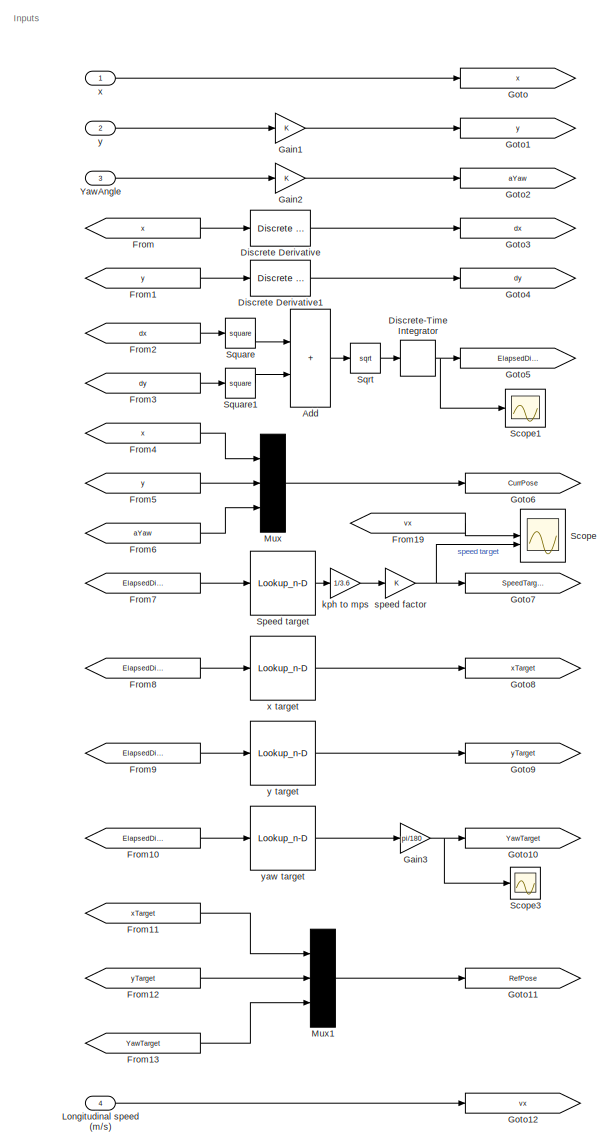
[diagram: root canvas - part 1/2, left side, full height]
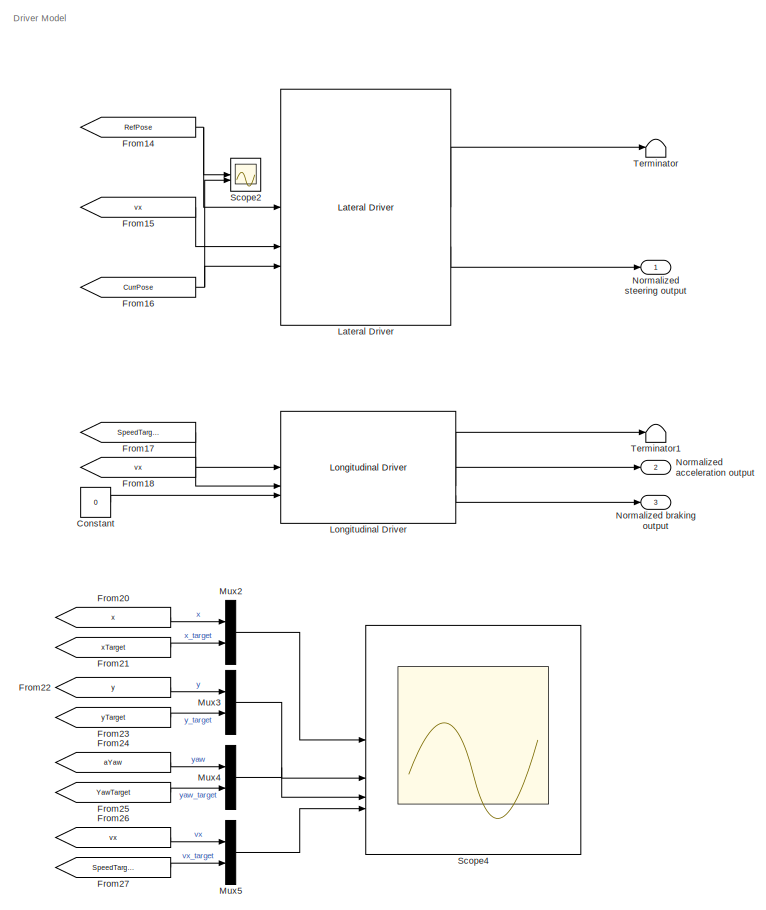
[diagram: root canvas - part 2/2, right side, full height]
MODEL slx_6027db2ee153
KIND model
CONFIG AbsTol = auto
CONFIG EnableMultiTasking = off
CONFIG FixedStep = Ts
CONFIG MaxStep = auto
CONFIG MinStep = auto
CONFIG RelTol = 1e-3
CONFIG SampleTimeConstraint = Unconstrained
CONFIG SolverName = FixedStepAuto
CONFIG StartTime = 0.0
CONFIG StopTime = 10.0
BLOCK [Sum] Add
  IconShape = rectangular
BLOCK [Constant] Constant
  Value = 0
BLOCK [Reference] Discrete Derivative  REF=simulink/Discrete/Discrete Derivative
  SourceBlock = simulink/Discrete/Discrete Derivative
  SourceType = Discrete Derivative
BLOCK [Reference] Discrete Derivative1  REF=simulink/Discrete/Discrete Derivative
  SourceBlock = simulink/Discrete/Discrete Derivative
  SourceType = Discrete Derivative
BLOCK [DiscreteIntegrator] Discrete-Time Integrator
  ICPrevOutput = DiscIntNeverNeededParam
  ICPrevScaledInput = DiscIntNeverNeededParam
  InitialConditionSetting = Auto
  SampleTime = -1
BLOCK [From] From
  GotoTag = x
BLOCK [From] From1
  GotoTag = y
BLOCK [From] From10
  GotoTag = ElapsedDistance
BLOCK [From] From11
  GotoTag = xTarget
BLOCK [From] From12
  GotoTag = yTarget
BLOCK [From] From13
  GotoTag = YawTarget
BLOCK [From] From14
  GotoTag = RefPose
BLOCK [From] From15
  GotoTag = vx
BLOCK [From] From16
  GotoTag = CurrPose
BLOCK [From] From17
  GotoTag = SpeedTarget
BLOCK [From] From18
  GotoTag = vx
BLOCK [From] From19
  GotoTag = vx
BLOCK [From] From2
  GotoTag = dx
BLOCK [From] From20
  GotoTag = x
BLOCK [From] From21
  GotoTag = xTarget
BLOCK [From] From22
  GotoTag = y
BLOCK [From] From23
  GotoTag = yTarget
BLOCK [From] From24
  GotoTag = aYaw
BLOCK [From] From25
  GotoTag = YawTarget
BLOCK [From] From26
  GotoTag = vx
BLOCK [From] From27
  GotoTag = SpeedTarget
BLOCK [From] From3
  GotoTag = dy
BLOCK [From] From4
  GotoTag = x
BLOCK [From] From5
  GotoTag = y
BLOCK [From] From6
  GotoTag = aYaw
BLOCK [From] From7
  GotoTag = ElapsedDistance
BLOCK [From] From8
  GotoTag = ElapsedDistance
BLOCK [From] From9
  GotoTag = ElapsedDistance
BLOCK [Gain] Gain1
BLOCK [Gain] Gain2
BLOCK [Gain] Gain3
  Gain = pi/180
BLOCK [Goto] Goto
  GotoTag = x
BLOCK [Goto] Goto1
  GotoTag = y
BLOCK [Goto] Goto10
  GotoTag = YawTarget
BLOCK [Goto] Goto11
  GotoTag = RefPose
BLOCK [Goto] Goto12
  GotoTag = vx
BLOCK [Goto] Goto2
  GotoTag = aYaw
BLOCK [Goto] Goto3
  GotoTag = dx
BLOCK [Goto] Goto4
  GotoTag = dy
BLOCK [Goto] Goto5
  GotoTag = ElapsedDistance
BLOCK [Goto] Goto6
  GotoTag = CurrPose
BLOCK [Goto] Goto7
  GotoTag = SpeedTarget
BLOCK [Goto] Goto8
  GotoTag = xTarget
BLOCK [Goto] Goto9
  GotoTag = yTarget
BLOCK [Reference] Lateral Driver  REF=vehdynlibdriver/Lateral Driver
  SourceBlock = vehdynlibdriver/Lateral Driver
  SourceType = Lateral Driver
BLOCK [Reference] Longitudinal Driver  REF=autolibshared/Longitudinal Driver
  LibrarySourceBlock = vehdynlibdriver/Longitudinal Driver
  SourceBlock = autolibshared/Longitudinal Driver
  SourceType = Longitudinal Driver
BLOCK [Inport] Longitudinal speed (m//s)
  Port = 4
BLOCK [Mux] Mux
  DisplayOption = bar
  Inputs = 3
BLOCK [Mux] Mux1
  DisplayOption = bar
  Inputs = 3
BLOCK [Mux] Mux2
  DisplayOption = bar
  Inputs = 2
BLOCK [Mux] Mux3
  DisplayOption = bar
  Inputs = 2
BLOCK [Mux] Mux4
  DisplayOption = bar
  Inputs = 2
BLOCK [Mux] Mux5
  DisplayOption = bar
  Inputs = 2
BLOCK [Outport] Normalized acceleration output
  Port = 2
BLOCK [Outport] Normalized braking output
  Port = 3
BLOCK [Outport] Normalized steering output
BLOCK [Scope] Scope
  Floating = off
  NumInputPorts = 2
  ScopeSpecificationString = Simulink.scopes.TimeScopeBlockCfg('CurrentConfiguration', extmgr.ConfigurationSet(extmgr.Configuration('Core','General UI',true),extmgr.Configuration('Core','Source UI',true),extmgr.Configuration('Sources','WiredSimulink',true),extmgr.Configuration('Visuals','Time Domain',true,'SerializedDisplays',{struct('MinYLimReal','-1.9335','MaxYLimReal','22.32298','YLabelReal','','MinYLimMag','0.00000','MaxY...<+1477ch>
BLOCK [Scope] Scope1
  Floating = off
  NumInputPorts = 1
  ScopeSpecificationString = Simulink.scopes.TimeScopeBlockCfg('CurrentConfiguration', extmgr.ConfigurationSet(extmgr.Configuration('Core','General UI',true),extmgr.Configuration('Core','Source UI',true),extmgr.Configuration('Sources','WiredSimulink',true,'DataLoggingVariableName','ScopeData1'),extmgr.Configuration('Visuals','Time Domain',true,'SerializedDisplays',{struct('MinYLimReal','-25.48926','MaxYLimReal','229.40334','Y...<+1511ch>
BLOCK [Scope] Scope2
  Floating = off
  NumInputPorts = 2
  ScopeSpecificationString = Simulink.scopes.TimeScopeBlockCfg('CurrentConfiguration', extmgr.ConfigurationSet(extmgr.Configuration('Core','General UI',true),extmgr.Configuration('Core','Source UI',true),extmgr.Configuration('Sources','WiredSimulink',true,'DataLoggingVariableName','ScopeData2'),extmgr.Configuration('Visuals','Time Domain',true,'SerializedDisplays',{struct('MinYLimReal','-22.81124','MaxYLimReal','22.81174','YL...<+2225ch>
BLOCK [Scope] Scope3
  Floating = off
  NumInputPorts = 1
  ScopeSpecificationString = Simulink.scopes.TimeScopeBlockCfg('CurrentConfiguration', extmgr.ConfigurationSet(extmgr.Configuration('Core','General UI',true),extmgr.Configuration('Core','Source UI',true),extmgr.Configuration('Sources','WiredSimulink',true,'DataLoggingVariableName','ScopeData3'),extmgr.Configuration('Visuals','Time Domain',true,'SerializedDisplays',{struct('MinYLimReal','-13.62939','MaxYLimReal','122.66451','Y...<+1468ch>
BLOCK [Scope] Scope4
  Floating = off
  NumInputPorts = 4
  ScopeSpecificationString = Simulink.scopes.TimeScopeBlockCfg('CurrentConfiguration', extmgr.ConfigurationSet(extmgr.Configuration('Core','General UI',true),extmgr.Configuration('Core','Source UI',true),extmgr.Configuration('Sources','WiredSimulink',true,'DataLoggingVariableName','ScopeData1'),extmgr.Configuration('Visuals','Time Domain',true,'SerializedDisplays',{struct('MinYLimReal','-12.23159','MaxYLimReal','18.43298','YL...<+4176ch>
BLOCK [Lookup_n-D] Speed target
  BreakpointsForDimension1 = lapData.distance
  InputPortMap = u0
  InternalRulePriority = Speed
  NumberOfTableDimensions = 1
  RndMeth = Simplest
  Table = lapData.vitesse
BLOCK [Sqrt] Sqrt
BLOCK [Math] Square
  Operator = square
BLOCK [Math] Square1
  Operator = square
BLOCK [Terminator] Terminator
BLOCK [Terminator] Terminator1
BLOCK [Inport] YawAngle
  Port = 3
BLOCK [Gain] kph to mps
  Gain = 1/3.6
BLOCK [Gain] speed factor
BLOCK [Inport] x
BLOCK [Lookup_n-D] x target
  BreakpointsForDimension1 = lapData.distance
  InputPortMap = u0
  InternalRulePriority = Speed
  NumberOfTableDimensions = 1
  RndMeth = Simplest
  Table = lapData.x
BLOCK [Inport] y
  Port = 2
BLOCK [Lookup_n-D] y target
  BreakpointsForDimension1 = lapData.distance
  InputPortMap = u0
  InternalRulePriority = Speed
  NumberOfTableDimensions = 1
  RndMeth = Simplest
  Table = lapData.y
BLOCK [Lookup_n-D] yaw target
  BreakpointsForDimension1 = lapData.distance
  InputPortMap = u0
  InternalRulePriority = Speed
  NumberOfTableDimensions = 1
  RndMeth = Simplest
  Table = lapData.aYaw
ANNOTATION (root): Driver Model
ANNOTATION (root): Inputs
LINE Add:1 -> Sqrt:1
LINE Constant:1 -> Longitudinal Driver:3
LINE Discrete Derivative1:1 -> Goto4:1
LINE Discrete Derivative:1 -> Goto3:1
NET Discrete-Time Integrator:1 -> Goto5:1, Scope1:1
LINE From10:1 -> yaw target:1
LINE From11:1 -> Mux1:1
LINE From12:1 -> Mux1:2
LINE From13:1 -> Mux1:3
NET From14:1 -> Lateral Driver:1, Scope2:1
LINE From15:1 -> Lateral Driver:2
NET From16:1 -> Lateral Driver:3, Scope2:2
LINE From17:1 -> Longitudinal Driver:1
LINE From18:1 -> Longitudinal Driver:2
LINE From19:1 -> Scope:1
LINE From1:1 -> Discrete Derivative1:1
LINE From20:1 -> Mux2:1
LINE From21:1 -> Mux2:2
LINE From22:1 -> Mux3:1
LINE From23:1 -> Mux3:2
LINE From24:1 -> Mux4:1
LINE From25:1 -> Mux4:2
LINE From26:1 -> Mux5:1
LINE From27:1 -> Mux5:2
LINE From2:1 -> Square:1
LINE From3:1 -> Square1:1
LINE From4:1 -> Mux:1
LINE From5:1 -> Mux:2
LINE From6:1 -> Mux:3
LINE From7:1 -> Speed target:1
LINE From8:1 -> x target:1
LINE From9:1 -> y target:1
LINE From:1 -> Discrete Derivative:1
LINE Gain1:1 -> Goto1:1
LINE Gain2:1 -> Goto2:1
NET Gain3:1 -> Goto10:1, Scope3:1
LINE Lateral Driver:1 -> Terminator:1
LINE Lateral Driver:2 -> Normalized steering output:1
LINE Longitudinal Driver:1 -> Terminator1:1
LINE Longitudinal Driver:2 -> Normalized acceleration output:1
LINE Longitudinal Driver:3 -> Normalized braking output:1
LINE Longitudinal speed (m//s):1 -> Goto12:1
LINE Mux1:1 -> Goto11:1
LINE Mux2:1 -> Scope4:1
LINE Mux3:1 -> Scope4:2
LINE Mux4:1 -> Scope4:3
LINE Mux5:1 -> Scope4:4
LINE Mux:1 -> Goto6:1
LINE Speed target:1 -> kph to mps:1
LINE Sqrt:1 -> Discrete-Time Integrator:1
LINE Square1:1 -> Add:2
LINE Square:1 -> Add:1
LINE YawAngle:1 -> Gain2:1
LINE kph to mps:1 -> speed factor:1
NET speed factor:1 -> Goto7:1, Scope:2
LINE x target:1 -> Goto8:1
LINE x:1 -> Goto:1
LINE y target:1 -> Goto9:1
LINE y:1 -> Gain1:1
LINE yaw target:1 -> Gain3:1
note: NET lines group one-source signal fan-out (src -> all destinations, sorted); 1:1 wires keep LINE
